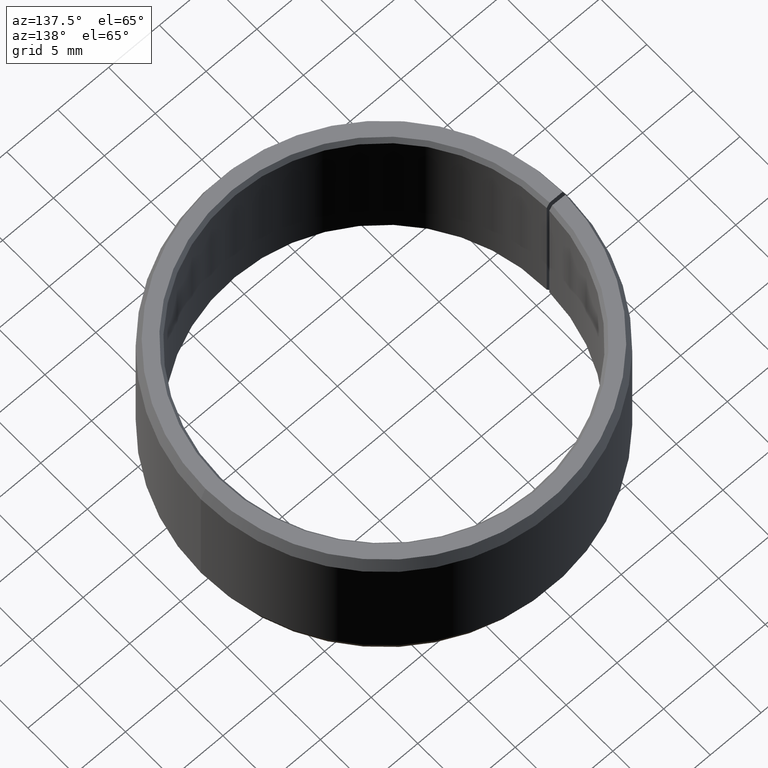
[diagram: clean part render]
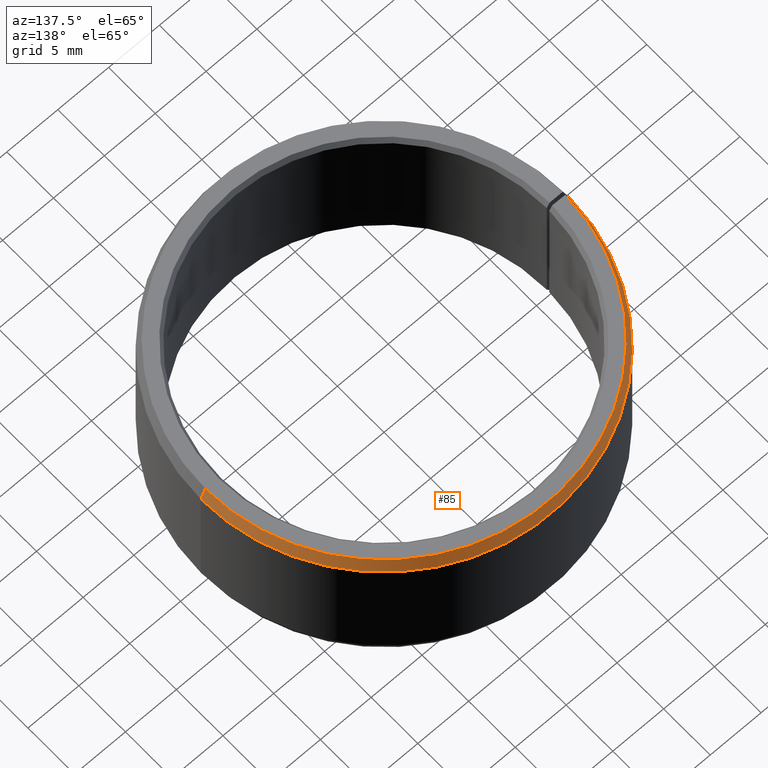
[diagram: same view with one face highlighted and labeled with its STEP entity id]
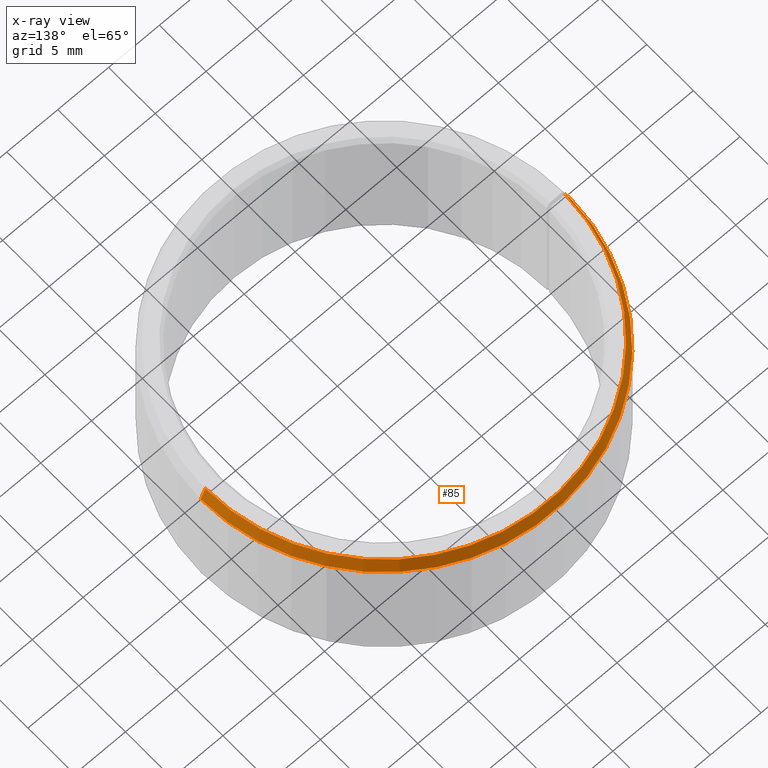
[diagram: x-ray of the same camera — body ghosted, the highlighted face saturated]
A machine part, auxiliary view. The second image highlights one B-rep face of the part: STEP entity #85.
The next image is the same camera in x-ray: the body ghosted, the highlighted face saturated — about 0% of this face is hidden behind the body in this view.
In plain terms, the highlighted conical surface has half-angle 20 deg.
Its self-contained STEP definition (entity closure, byte-faithful):
#85=ADVANCED_FACE('',(#112),#113,.T.);
#112=FACE_OUTER_BOUND('',#144,.T.);
#113=CONICAL_SURFACE('',#145,17.7816178594403,0.349065850398868);
#144=EDGE_LOOP('',(#228,#229,#230,#231));
#145=AXIS2_PLACEMENT_3D('',#232,#233,#234);
#228=ORIENTED_EDGE('',*,*,#287,.T.);
#229=ORIENTED_EDGE('',*,*,#309,.T.);
#230=ORIENTED_EDGE('',*,*,#310,.T.);
#231=ORIENTED_EDGE('',*,*,#311,.F.);
#232=CARTESIAN_POINT('',(8.25468852942843E-015,-8.66032612185566E-015,14.4));
#233=DIRECTION('',(-5.48707263966375E-016,6.09939603923743E-016,-1.0));
#234=DIRECTION('',(-1.0,1.76004364123684E-015,5.48707263966376E-016));
#287=EDGE_CURVE('',#331,#332,#333,.T.);
#309=EDGE_CURVE('',#332,#366,#368,.T.);
#310=EDGE_CURVE('',#366,#369,#370,.T.);
#311=EDGE_CURVE('',#331,#369,#371,.T.);
#331=VERTEX_POINT('',#397);
#332=VERTEX_POINT('',#398);
#333=LINE('',#399,#400);
#366=VERTEX_POINT('',#444);
#368=CIRCLE('',#447,18.0);
#369=VERTEX_POINT('',#448);
#370=LINE('',#449,#450);
#371=CIRCLE('',#451,17.5632357188806);
#397=CARTESIAN_POINT('',(17.5632357188806,-4.20892272713492E-014,15.0));
#398=CARTESIAN_POINT('',(18.0,-4.26020152859356E-014,13.8));
#399=CARTESIAN_POINT('',(17.7816178594403,-4.21343697057895E-014,14.4));
#400=VECTOR('',#477,1.0);
#444=CARTESIAN_POINT('',(-17.997258512815,0.314143315871128,13.8));
#447=AXIS2_PLACEMENT_3D('',#517,#518,#519);
#448=CARTESIAN_POINT('',(-17.5605607530111,0.306520728119743,15.0));
#449=CARTESIAN_POINT('',(-17.997258512815,0.31414331587113,13.8));
#450=VECTOR('',#520,10.0);
#451=AXIS2_PLACEMENT_3D('',#521,#522,#523);
#477=DIRECTION('',(0.34202014332567,-7.07000208798091E-017,-0.939692620785908));
#517=CARTESIAN_POINT('',(7.9254641710486E-015,-8.33110176347584E-015,13.8));
#518=DIRECTION('',(5.48707263966375E-016,-6.09939603923743E-016,1.0));
#519=DIRECTION('',(-1.0,1.76004364123684E-015,5.48707263966376E-016));
#520=DIRECTION('',(0.341968052001231,-0.00596907455106049,0.939692620785907));
#521=CARTESIAN_POINT('',(8.58391288780825E-015,-8.98955048023549E-015,15.0));
#522=DIRECTION('',(5.48707263966375E-016,-6.09939603923743E-016,1.0));
#523=DIRECTION('',(-1.0,1.76004364123684E-015,5.48707263966376E-016));